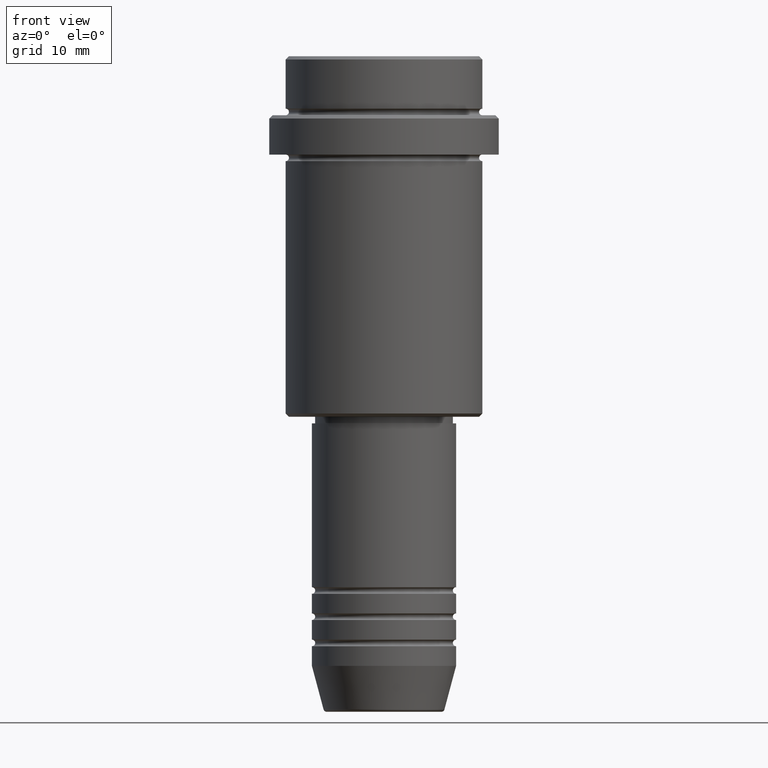
[diagram: clean part render]
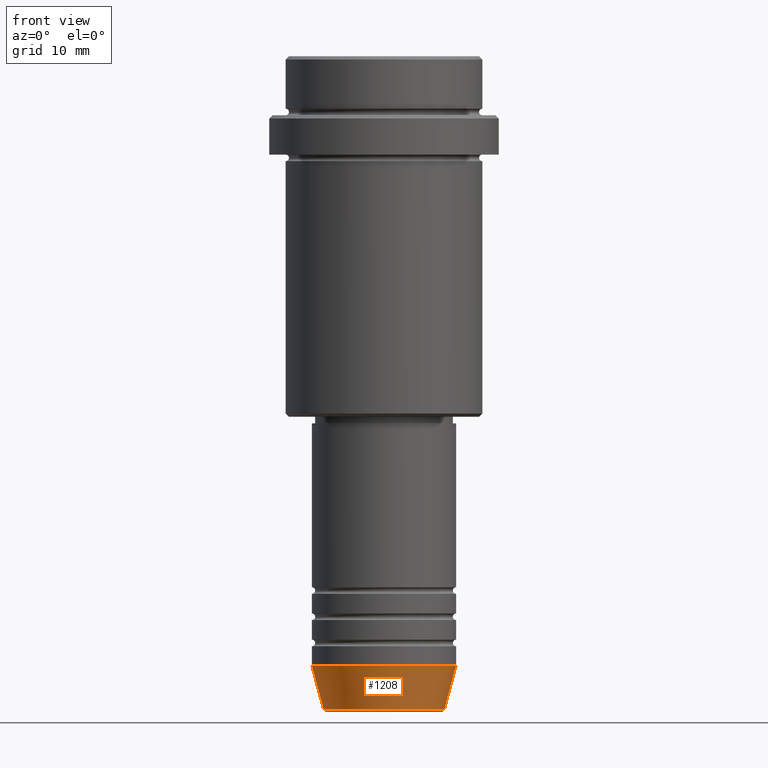
[diagram: same view with one face highlighted and labeled with its STEP entity id]
A machine part, front view. The second image highlights one B-rep face of the part: STEP entity #1208.
In plain terms, the highlighted conical surface has half-angle 15 deg.
Its self-contained STEP definition (entity closure, byte-faithful):
#47 = DIRECTION ( 'NONE',  ( -0.000000000000000000, -0.000000000000000000, 1.000000000000000000 ) ) ;
#55 = CIRCLE ( 'NONE', #691, 9.223655072137187716 ) ;
#79 = DIRECTION ( 'NONE',  ( 1.000000000000000000, 0.000000000000000000, 0.000000000000000000 ) ) ;
#136 = VERTEX_POINT ( 'NONE', #1347 ) ;
#143 = DIRECTION ( 'NONE',  ( -0.000000000000000000, -0.000000000000000000, 1.000000000000000000 ) ) ;
#151 = EDGE_CURVE ( 'NONE', #136, #965, #55, .T. ) ;
#305 = CARTESIAN_POINT ( 'NONE',  ( 0.000000000000000000, 0.000000000000000000, -93.00000000000000000 ) ) ;
#316 = CARTESIAN_POINT ( 'NONE',  ( 9.223655072137187716, 0.000000000000000000, -99.62940952255125637 ) ) ;
#326 = EDGE_LOOP ( 'NONE', ( #1075, #739, #1227, #519 ) ) ;
#370 = CARTESIAN_POINT ( 'NONE',  ( 0.000000000000000000, 0.000000000000000000, -99.62940952255125637 ) ) ;
#403 = DIRECTION ( 'NONE',  ( 1.000000000000000000, 0.000000000000000000, 0.000000000000000000 ) ) ;
#444 = LINE ( 'NONE', #992, #457 ) ;
#457 = VECTOR ( 'NONE', #761, 1000.000000000000000 ) ;
#475 = VERTEX_POINT ( 'NONE', #1379 ) ;
#478 = CONICAL_SURFACE ( 'NONE', #1257, 11.00000000000000000, 0.2617993877991500740 ) ;
#495 = DIRECTION ( 'NONE',  ( 1.000000000000000000, 0.000000000000000000, 0.000000000000000000 ) ) ;
#508 = CARTESIAN_POINT ( 'NONE',  ( 11.00000000000000000, 0.000000000000000000, -93.00000000000000000 ) ) ;
#512 = FACE_OUTER_BOUND ( 'NONE', #326, .T. ) ;
#519 = ORIENTED_EDGE ( 'NONE', *, *, #539, .F. ) ;
#539 = EDGE_CURVE ( 'NONE', #475, #746, #1259, .T. ) ;
#691 = AXIS2_PLACEMENT_3D ( 'NONE', #370, #143, #495 ) ;
#739 = ORIENTED_EDGE ( 'NONE', *, *, #151, .T. ) ;
#746 = VERTEX_POINT ( 'NONE', #508 ) ;
#761 = DIRECTION ( 'NONE',  ( 0.2588190451025213501, 0.000000000000000000, 0.9659258262890680902 ) ) ;
#838 = CARTESIAN_POINT ( 'NONE',  ( 0.000000000000000000, 0.000000000000000000, -93.00000000000000000 ) ) ;
#888 = CARTESIAN_POINT ( 'NONE',  ( -11.00000000000000000, 1.347111479062088405E-15, -93.00000000000000000 ) ) ;
#965 = VERTEX_POINT ( 'NONE', #316 ) ;
#992 = CARTESIAN_POINT ( 'NONE',  ( 11.00000000000000000, 0.000000000000000000, -93.00000000000000000 ) ) ;
#1049 = VECTOR ( 'NONE', #1086, 1000.000000000000000 ) ;
#1052 = AXIS2_PLACEMENT_3D ( 'NONE', #305, #1180, #79 ) ;
#1075 = ORIENTED_EDGE ( 'NONE', *, *, #1276, .F. ) ;
#1086 = DIRECTION ( 'NONE',  ( -0.2588190451025213501, 3.169619151431772337E-17, 0.9659258262890680902 ) ) ;
#1180 = DIRECTION ( 'NONE',  ( -0.000000000000000000, -0.000000000000000000, 1.000000000000000000 ) ) ;
#1203 = LINE ( 'NONE', #888, #1049 ) ;
#1208 = ADVANCED_FACE ( 'NONE', ( #512 ), #478, .T. ) ;
#1227 = ORIENTED_EDGE ( 'NONE', *, *, #1253, .T. ) ;
#1253 = EDGE_CURVE ( 'NONE', #965, #746, #444, .T. ) ;
#1257 = AXIS2_PLACEMENT_3D ( 'NONE', #838, #47, #403 ) ;
#1259 = CIRCLE ( 'NONE', #1052, 11.00000000000000000 ) ;
#1276 = EDGE_CURVE ( 'NONE', #136, #475, #1203, .T. ) ;
#1347 = CARTESIAN_POINT ( 'NONE',  ( -9.223655072137187716, 1.238341722557647004E-15, -99.62940952255125637 ) ) ;
#1379 = CARTESIAN_POINT ( 'NONE',  ( -11.00000000000000000, 1.347111479062088405E-15, -93.00000000000000000 ) ) ;